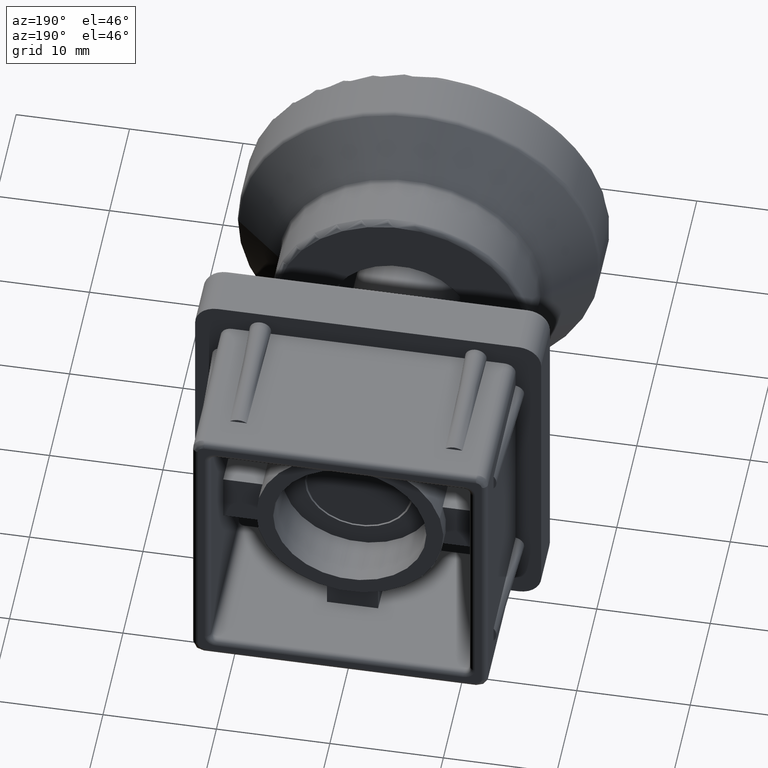
[diagram: clean part render]
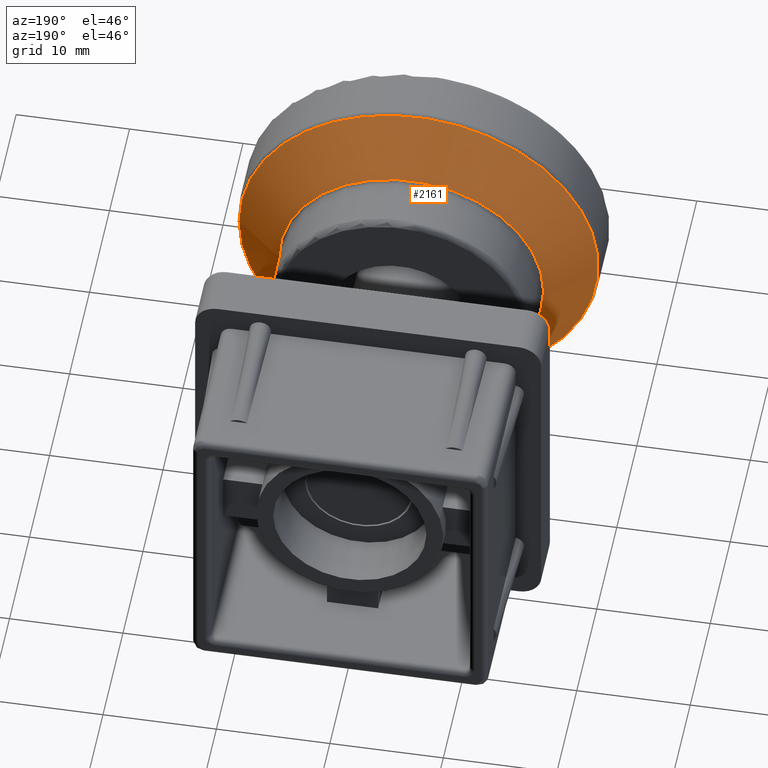
[diagram: same view with one face highlighted and labeled with its STEP entity id]
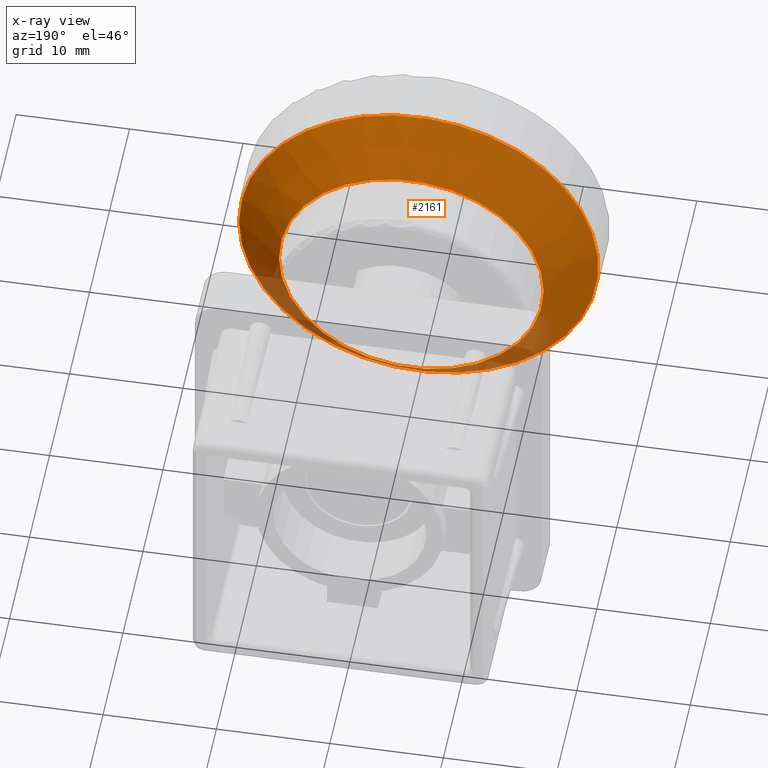
[diagram: x-ray of the same camera — body ghosted, the highlighted face saturated]
A machine part, auxiliary view. The second image highlights one B-rep face of the part: STEP entity #2161.
The next image is the same camera in x-ray: the body ghosted, the highlighted face saturated — about 9% of this face is hidden behind the body in this view.
In plain terms, the highlighted conical surface has half-angle 48.366 deg.
Its self-contained STEP definition (entity closure, byte-faithful):
#39=CONICAL_SURFACE('',#2319,13.75,48.3664606634298);
#47=FACE_BOUND('',#434,.T.);
#85=CIRCLE('',#2318,15.832181919415);
#86=CIRCLE('',#2320,11.667818080585);
#290=FACE_OUTER_BOUND('',#433,.T.);
#433=EDGE_LOOP('',(#1559));
#434=EDGE_LOOP('',(#1560));
#988=VERTEX_POINT('',#3494);
#989=VERTEX_POINT('',#3497);
#1215=EDGE_CURVE('',#988,#988,#85,.T.);
#1216=EDGE_CURVE('',#989,#989,#86,.T.);
#1559=ORIENTED_EDGE('',*,*,#1216,.F.);
#1560=ORIENTED_EDGE('',*,*,#1215,.F.);
#2161=ADVANCED_FACE('',(#290,#47),#39,.T.);
#2318=AXIS2_PLACEMENT_3D('',#3495,#2651,#2652);
#2319=AXIS2_PLACEMENT_3D('',#3496,#2653,#2654);
#2320=AXIS2_PLACEMENT_3D('',#3498,#2655,#2656);
#2651=DIRECTION('center_axis',(7.01244484352275E-17,-1.,7.01244484352276E-17));
#2652=DIRECTION('ref_axis',(-1.,-7.01244484352275E-17,0.));
#2653=DIRECTION('center_axis',(6.34413156928661E-17,-1.,0.));
#2654=DIRECTION('ref_axis',(1.,0.,0.));
#2655=DIRECTION('center_axis',(0.,1.,0.));
#2656=DIRECTION('ref_axis',(-1.,0.,0.));
#3494=CARTESIAN_POINT('',(15.832181919415,5.1491716271867,2.46519032881566E-31));
#3495=CARTESIAN_POINT('Origin',(-1.11022302462516E-15,5.1491716271867,-1.93888309111301E-15));
#3496=CARTESIAN_POINT('Origin',(-4.44089209850063E-16,7.,0.));
#3497=CARTESIAN_POINT('',(11.667818080585,8.8508283728133,-2.85779121308442E-15));
#3498=CARTESIAN_POINT('Origin',(0.,8.8508283728133,-1.42889560654221E-15));